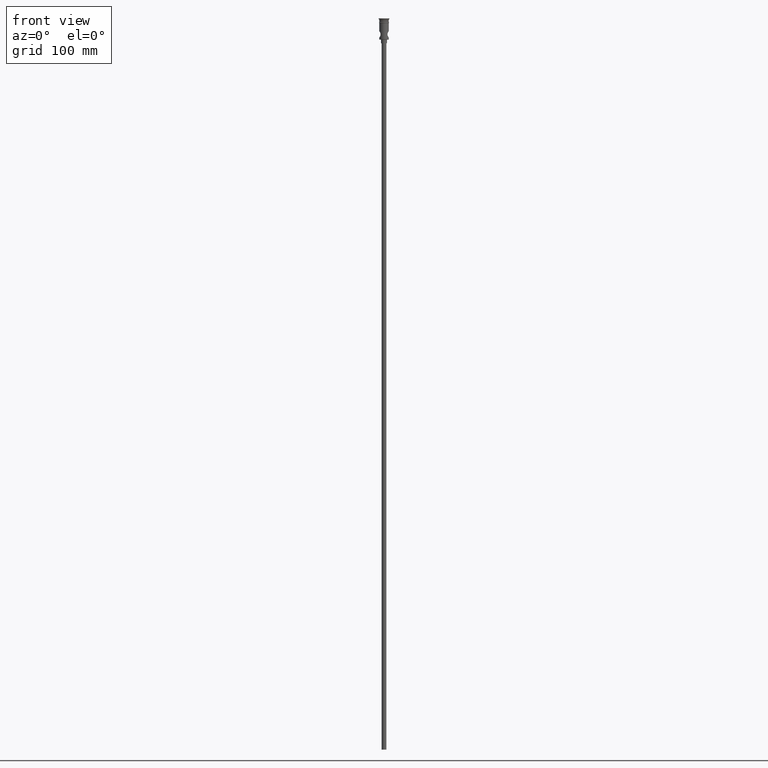
[diagram: clean part render]
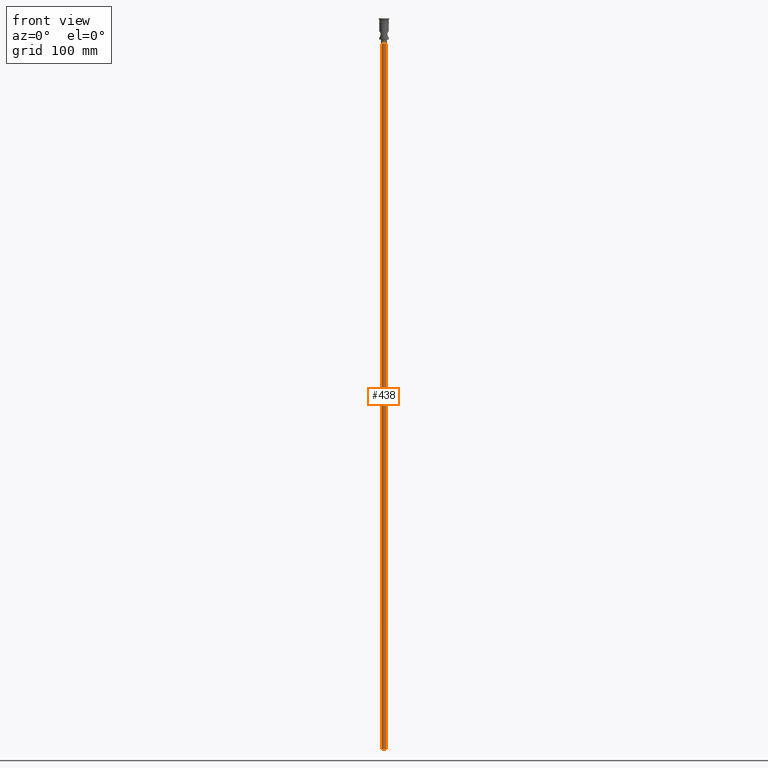
[diagram: same view with one face highlighted and labeled with its STEP entity id]
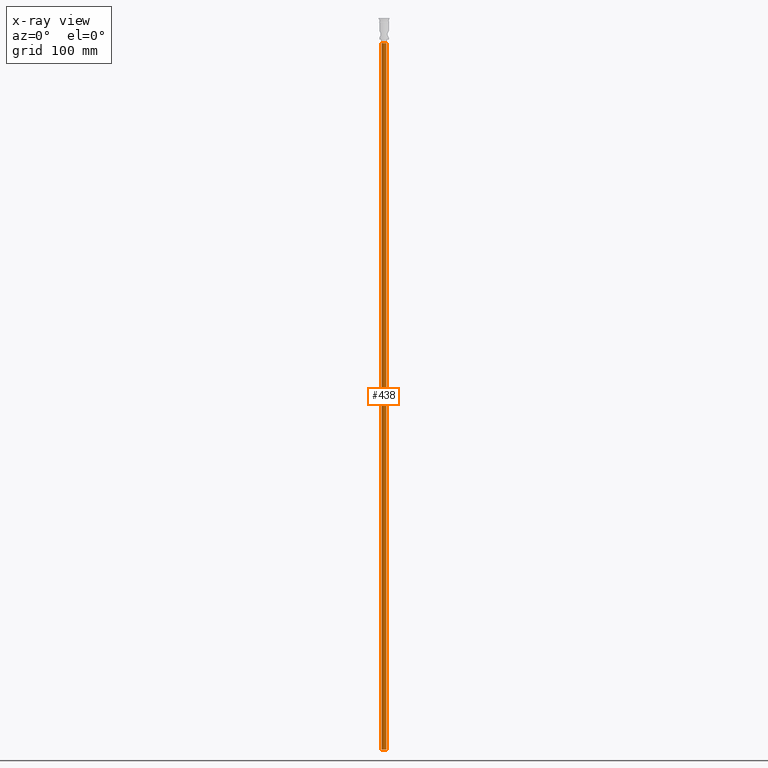
[diagram: x-ray of the same camera — body ghosted, the highlighted face saturated]
A machine part, front view. The second image highlights one B-rep face of the part: STEP entity #438.
The next image is the same camera in x-ray: the body ghosted, the highlighted face saturated — about 0% of this face is hidden behind the body in this view.
In plain terms, the highlighted cylindrical surface (edge-blend (fillet) strip) has radius 2 mm, axis along (-0, -0, 1).
Its self-contained STEP definition (entity closure, byte-faithful):
#52 = CARTESIAN_POINT ( 'NONE',  ( 0.000000000000000000, 0.000000000000000000, -618.0000000000000000 ) ) ;
#87 = CIRCLE ( 'NONE', #903, 2.000000000000000000 ) ;
#127 = DIRECTION ( 'NONE',  ( -0.000000000000000000, -0.000000000000000000, 1.000000000000000000 ) ) ;
#163 = DIRECTION ( 'NONE',  ( -0.000000000000000000, -0.000000000000000000, 1.000000000000000000 ) ) ;
#221 = ORIENTED_EDGE ( 'NONE', *, *, #1395, .T. ) ;
#284 = FACE_OUTER_BOUND ( 'NONE', #1006, .T. ) ;
#290 = CYLINDRICAL_SURFACE ( 'NONE', #927, 2.000000000000000000 ) ;
#385 = CARTESIAN_POINT ( 'NONE',  ( 0.000000000000000000, 0.000000000000000000, -618.0000000000000000 ) ) ;
#403 = EDGE_CURVE ( 'NONE', #1298, #611, #87, .T. ) ;
#436 = LINE ( 'NONE', #1211, #1140 ) ;
#438 = ADVANCED_FACE ( 'NONE', ( #284 ), #290, .T. ) ;
#522 = VERTEX_POINT ( 'NONE', #982 ) ;
#532 = VECTOR ( 'NONE', #127, 1000.000000000000000 ) ;
#581 = LINE ( 'NONE', #1371, #532 ) ;
#611 = VERTEX_POINT ( 'NONE', #1180 ) ;
#656 = CARTESIAN_POINT ( 'NONE',  ( 2.000000000000000000, 0.000000000000000000, -618.0000000000000000 ) ) ;
#659 = CARTESIAN_POINT ( 'NONE',  ( -2.000000000000000000, 2.449293598294706414E-16, -20.99999999999999645 ) ) ;
#674 = AXIS2_PLACEMENT_3D ( 'NONE', #1429, #868, #991 ) ;
#826 = DIRECTION ( 'NONE',  ( -1.000000000000000000, 0.000000000000000000, 0.000000000000000000 ) ) ;
#868 = DIRECTION ( 'NONE',  ( 0.000000000000000000, 0.000000000000000000, -1.000000000000000000 ) ) ;
#869 = VERTEX_POINT ( 'NONE', #659 ) ;
#903 = AXIS2_PLACEMENT_3D ( 'NONE', #52, #1278, #826 ) ;
#927 = AXIS2_PLACEMENT_3D ( 'NONE', #385, #163, #937 ) ;
#937 = DIRECTION ( 'NONE',  ( 1.000000000000000000, 0.000000000000000000, 0.000000000000000000 ) ) ;
#982 = CARTESIAN_POINT ( 'NONE',  ( 2.000000000000000000, 0.000000000000000000, -20.99999999999999645 ) ) ;
#991 = DIRECTION ( 'NONE',  ( -1.000000000000000000, 0.000000000000000000, 0.000000000000000000 ) ) ;
#1006 = EDGE_LOOP ( 'NONE', ( #1181, #1241, #221, #1186 ) ) ;
#1105 = DIRECTION ( 'NONE',  ( -0.000000000000000000, -0.000000000000000000, 1.000000000000000000 ) ) ;
#1140 = VECTOR ( 'NONE', #1105, 1000.000000000000000 ) ;
#1180 = CARTESIAN_POINT ( 'NONE',  ( -2.000000000000000000, 2.449293598294706414E-16, -618.0000000000000000 ) ) ;
#1181 = ORIENTED_EDGE ( 'NONE', *, *, #1311, .F. ) ;
#1186 = ORIENTED_EDGE ( 'NONE', *, *, #1442, .T. ) ;
#1211 = CARTESIAN_POINT ( 'NONE',  ( -2.000000000000000000, 2.449293598294706414E-16, -618.0000000000000000 ) ) ;
#1241 = ORIENTED_EDGE ( 'NONE', *, *, #403, .F. ) ;
#1278 = DIRECTION ( 'NONE',  ( 0.000000000000000000, 0.000000000000000000, -1.000000000000000000 ) ) ;
#1295 = CIRCLE ( 'NONE', #674, 2.000000000000000000 ) ;
#1298 = VERTEX_POINT ( 'NONE', #656 ) ;
#1311 = EDGE_CURVE ( 'NONE', #611, #869, #436, .T. ) ;
#1371 = CARTESIAN_POINT ( 'NONE',  ( 2.000000000000000000, 0.000000000000000000, -618.0000000000000000 ) ) ;
#1395 = EDGE_CURVE ( 'NONE', #1298, #522, #581, .T. ) ;
#1429 = CARTESIAN_POINT ( 'NONE',  ( 0.000000000000000000, 0.000000000000000000, -20.99999999999999645 ) ) ;
#1442 = EDGE_CURVE ( 'NONE', #522, #869, #1295, .T. ) ;